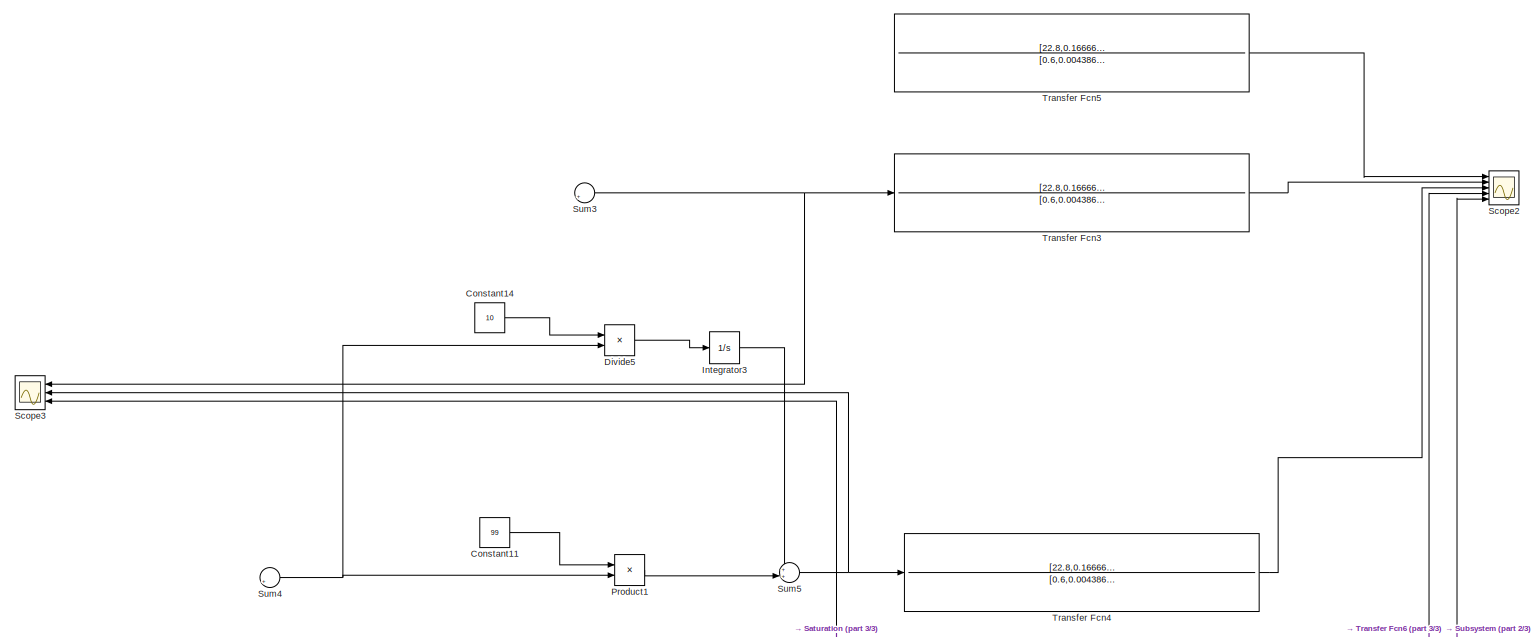
[diagram: root canvas - part 1/3, top right region]
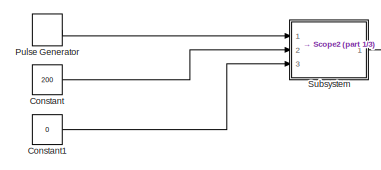
[diagram: root canvas - part 2/3, middle left region]
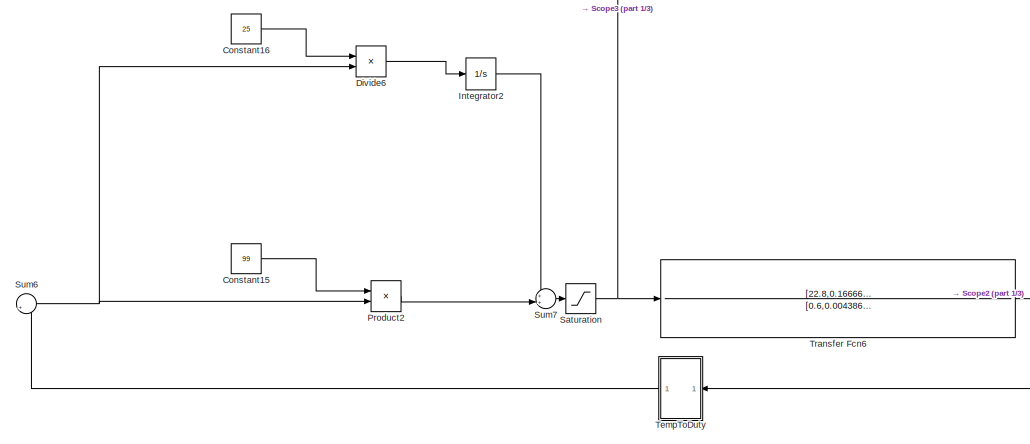
[diagram: root canvas - part 3/3, bottom right region]
MODEL slx_338e38ade154
KIND model
CONFIG AbsTol = auto
CONFIG EnableMultiTasking = off
CONFIG FixedStep = auto
CONFIG MaxStep = auto
CONFIG MinStep = auto
CONFIG RelTol = 1e-3
CONFIG SampleTimeConstraint = Unconstrained
CONFIG Solver = VariableStepAuto
CONFIG SolverName = VariableStepAuto
CONFIG StartTime = 0.0
CONFIG StopTime = 28800
BLOCK [Constant] Constant
  Value = 200
BLOCK [Constant] Constant1
  Value = 0
BLOCK [Constant] Constant11
  Value = 99
BLOCK [Constant] Constant14
  Value = 10
BLOCK [Constant] Constant15
  Value = 99
BLOCK [Constant] Constant16
  Value = 25
BLOCK [Product] Divide5
  InputSameDT = off
  Inputs = /*
  OutDataTypeStr = Inherit: Inherit via internal rule
  Ports = [2, 1]
  RndMeth = Floor
  SaturateOnIntegerOverflow = off
BLOCK [Product] Divide6
  InputSameDT = off
  Inputs = /*
  OutDataTypeStr = Inherit: Inherit via internal rule
  Ports = [2, 1]
  RndMeth = Floor
  SaturateOnIntegerOverflow = off
BLOCK [Integrator] Integrator2
  Ports = [1, 1]
BLOCK [Integrator] Integrator3
  Ports = [1, 1]
BLOCK [Product] Product1
  InputSameDT = off
  OutDataTypeStr = Inherit: Inherit via internal rule
  Ports = [2, 1]
  RndMeth = Floor
  SaturateOnIntegerOverflow = off
BLOCK [Product] Product2
  InputSameDT = off
  OutDataTypeStr = Inherit: Inherit via internal rule
  Ports = [2, 1]
  RndMeth = Floor
  SaturateOnIntegerOverflow = off
BLOCK [DiscretePulseGenerator] Pulse Generator
  Period = 14400
  PhaseDelay = 7200
  Ports = [0, 1]
  PulseType = Time based
  PulseWidth = 50
BLOCK [Saturate] Saturation
  InputPortMap = u0
  LowerLimit = 0
  Ports = [1, 1]
  UpperLimit = 1
BLOCK [Scope] Scope2
  Floating = off
  NumInputPorts = 5
  Ports = [5]
  ScopeSpecificationString = Simulink.scopes.TimeScopeBlockCfg('CurrentConfiguration', extmgr.ConfigurationSet(extmgr.Configuration('Core','General UI',true),extmgr.Configuration('Core','Source UI',true),extmgr.Configuration('Sources','WiredSimulink',true,'DataLoggingVariableName','ScopeData2'),extmgr.Configuration('Visuals','Time Domain',true,'SerializedDisplays',{struct('MinYLimReal','-5.65132','MaxYLimReal','344.56794','YL...<+1822ch>
BLOCK [Scope] Scope3
  Floating = off
  NumInputPorts = 3
  Ports = [3]
  ScopeSpecificationString = Simulink.scopes.TimeScopeBlockCfg('CurrentConfiguration', extmgr.ConfigurationSet(extmgr.Configuration('Core','General UI',true),extmgr.Configuration('Core','Source UI',true),extmgr.Configuration('Sources','WiredSimulink',true,'DataLoggingVariableName','ScopeData3'),extmgr.Configuration('Visuals','Time Domain',true,'SerializedDisplays',{struct('MinYLimReal','-1.93816','MaxYLimReal','6.96213','YLab...<+1816ch>
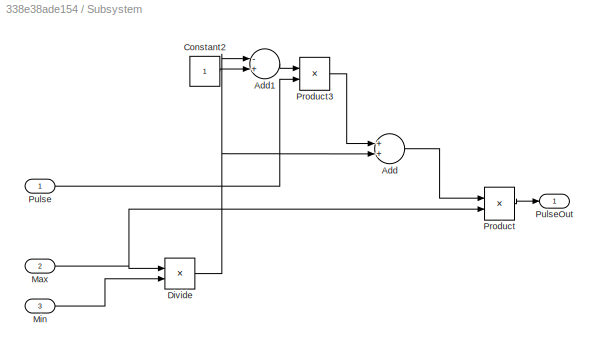
BLOCK [SubSystem] Subsystem
  Ports = [3, 1]
  RequestExecContextInheritance = off
BLOCK [Sum] Subsystem/Add
  InputSameDT = off
  OutDataTypeStr = Inherit: Inherit via internal rule
  Ports = [2, 1]
  SaturateOnIntegerOverflow = off
BLOCK [Sum] Subsystem/Add1
  InputSameDT = off
  Inputs = -+
  OutDataTypeStr = Inherit: Inherit via internal rule
  Ports = [2, 1]
  SaturateOnIntegerOverflow = off
BLOCK [Constant] Subsystem/Constant2
BLOCK [Product] Subsystem/Divide
  InputSameDT = off
  Inputs = /*
  OutDataTypeStr = Inherit: Inherit via internal rule
  Ports = [2, 1]
  RndMeth = Floor
  SaturateOnIntegerOverflow = off
BLOCK [Inport] Subsystem/Max
  IconDisplay = Port number
  Port = 2
BLOCK [Inport] Subsystem/Min
  IconDisplay = Port number
  Port = 3
BLOCK [Product] Subsystem/Product
  InputSameDT = off
  OutDataTypeStr = Inherit: Inherit via internal rule
  Ports = [2, 1]
  RndMeth = Floor
  SaturateOnIntegerOverflow = off
BLOCK [Product] Subsystem/Product3
  InputSameDT = off
  OutDataTypeStr = Inherit: Inherit via internal rule
  Ports = [2, 1]
  RndMeth = Floor
  SaturateOnIntegerOverflow = off
BLOCK [Inport] Subsystem/Pulse
  IconDisplay = Port number
BLOCK [Outport] Subsystem/PulseOut
  IconDisplay = Port number
BLOCK [Sum] Sum3
  IconShape = round
  InputSameDT = off
  Inputs = |+-
  OutDataTypeStr = Inherit: Inherit via internal rule
  Ports = [2, 1]
  SaturateOnIntegerOverflow = off
BLOCK [Sum] Sum4
  IconShape = round
  InputSameDT = off
  Inputs = |+-
  OutDataTypeStr = Inherit: Inherit via internal rule
  Ports = [2, 1]
  SaturateOnIntegerOverflow = off
BLOCK [Sum] Sum5
  IconShape = round
  InputSameDT = off
  Inputs = ++|
  OutDataTypeStr = Inherit: Inherit via internal rule
  Ports = [2, 1]
  SaturateOnIntegerOverflow = off
BLOCK [Sum] Sum6
  IconShape = round
  InputSameDT = off
  Inputs = |+-
  OutDataTypeStr = Inherit: Inherit via internal rule
  Ports = [2, 1]
  SaturateOnIntegerOverflow = off
BLOCK [Sum] Sum7
  IconShape = round
  InputSameDT = off
  Inputs = ++|
  OutDataTypeStr = Inherit: Inherit via internal rule
  Ports = [2, 1]
  SaturateOnIntegerOverflow = off
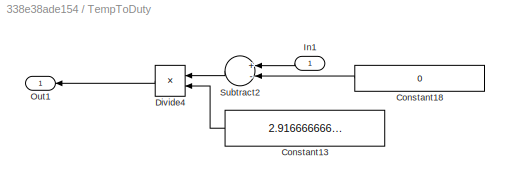
BLOCK [SubSystem] TempToDuty
  Ports = [1, 1]
  RequestExecContextInheritance = off
BLOCK [Constant] TempToDuty/Constant13
  Value = 2.916666666666668e+02
BLOCK [Constant] TempToDuty/Constant18
  Value = 0
BLOCK [Product] TempToDuty/Divide4
  InputSameDT = off
  Inputs = */
  OutDataTypeStr = Inherit: Inherit via internal rule
  Ports = [2, 1]
  RndMeth = Floor
  SaturateOnIntegerOverflow = off
BLOCK [Inport] TempToDuty/In1
  IconDisplay = Port number
BLOCK [Outport] TempToDuty/Out1
  IconDisplay = Port number
BLOCK [Sum] TempToDuty/Subtract2
  InputSameDT = off
  Inputs = +-
  OutDataTypeStr = Inherit: Inherit via internal rule
  Ports = [2, 1]
  SaturateOnIntegerOverflow = off
BLOCK [TransferFcn] Transfer Fcn3
  Denominator = [0.6,0.004386,1.1094e-05]
  Numerator = [22.8,0.166668,0.00323575]
BLOCK [TransferFcn] Transfer Fcn4
  Denominator = [0.6,0.004386,1.1094e-05]
  Numerator = [22.8,0.166668,0.00323575]
BLOCK [TransferFcn] Transfer Fcn5
  Denominator = [0.6,0.004386,1.1094e-05]
  Numerator = [22.8,0.166668,0.00323575]
BLOCK [TransferFcn] Transfer Fcn6
  Denominator = [0.6,0.004386,1.1094e-05]
  Numerator = [22.8,0.166668,0.00323575]
LINE Constant11:1 -> Product1:1
LINE Constant14:1 -> Divide5:1
LINE Constant15:1 -> Product2:1
LINE Constant16:1 -> Divide6:1
LINE Constant1:1 -> Subsystem:3
LINE Constant:1 -> Subsystem:2
LINE Divide5:1 -> Integrator3:1
LINE Divide6:1 -> Integrator2:1
LINE Integrator2:1 -> Sum7:1
LINE Integrator3:1 -> Sum5:1
LINE Product1:1 -> Sum5:2
LINE Product2:1 -> Sum7:2
LINE Pulse Generator:1 -> Subsystem:1
NET Saturation:1 -> Scope3:3, Transfer Fcn6:1
LINE Subsystem/Add1:1 -> Subsystem/Product3:1
LINE Subsystem/Add:1 -> Subsystem/Product:1
LINE Subsystem/Constant2:1 -> Subsystem/Add1:2
NET Subsystem/Divide:1 -> Subsystem/Add1:1, Subsystem/Add:2
NET Subsystem/Max:1 -> Subsystem/Divide:1, Subsystem/Product:2
LINE Subsystem/Min:1 -> Subsystem/Divide:2
LINE Subsystem/Product3:1 -> Subsystem/Add:1
LINE Subsystem/Product:1 -> Subsystem/PulseOut:1
LINE Subsystem/Pulse:1 -> Subsystem/Product3:2
LINE Subsystem:1 -> Scope2:5
NET Sum3:1 -> Scope3:1, Transfer Fcn3:1
NET Sum4:1 -> Divide5:2, Product1:2
NET Sum5:1 -> Scope3:2, Transfer Fcn4:1
NET Sum6:1 -> Divide6:2, Product2:2
LINE Sum7:1 -> Saturation:1
LINE TempToDuty/Constant13:1 -> TempToDuty/Divide4:2
LINE TempToDuty/Constant18:1 -> TempToDuty/Subtract2:2
LINE TempToDuty/Divide4:1 -> TempToDuty/Out1:1
LINE TempToDuty/In1:1 -> TempToDuty/Subtract2:1
LINE TempToDuty/Subtract2:1 -> TempToDuty/Divide4:1
LINE TempToDuty:1 -> Sum6:2
LINE Transfer Fcn3:1 -> Scope2:2
LINE Transfer Fcn4:1 -> Scope2:3
LINE Transfer Fcn5:1 -> Scope2:1
NET Transfer Fcn6:1 -> Scope2:4, TempToDuty:1
note: NET lines group one-source signal fan-out (src -> all destinations, sorted); 1:1 wires keep LINE
